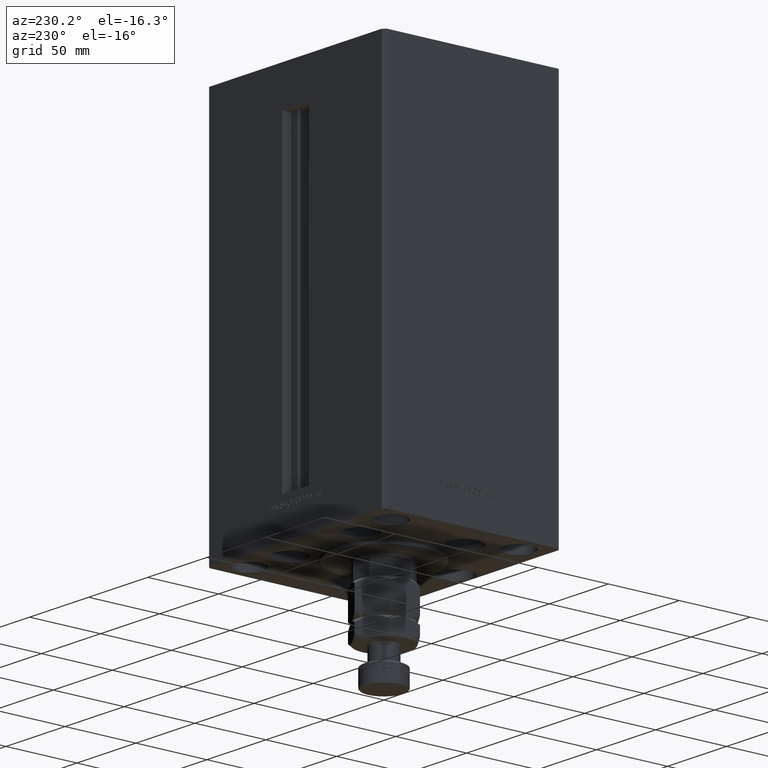
[diagram: clean part render]
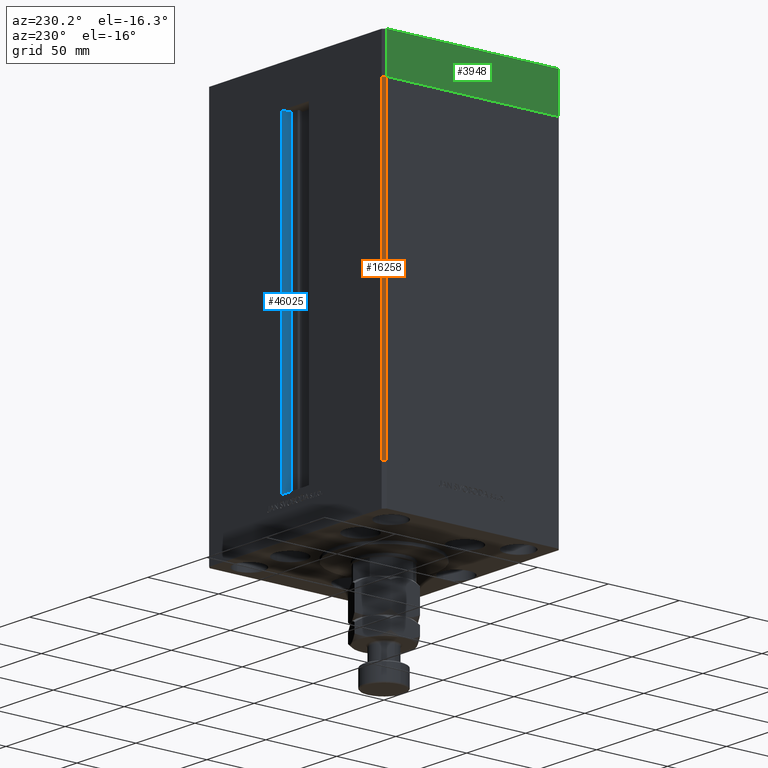
[diagram: same view with three faces highlighted in distinct colors, each labeled with its STEP entity id]
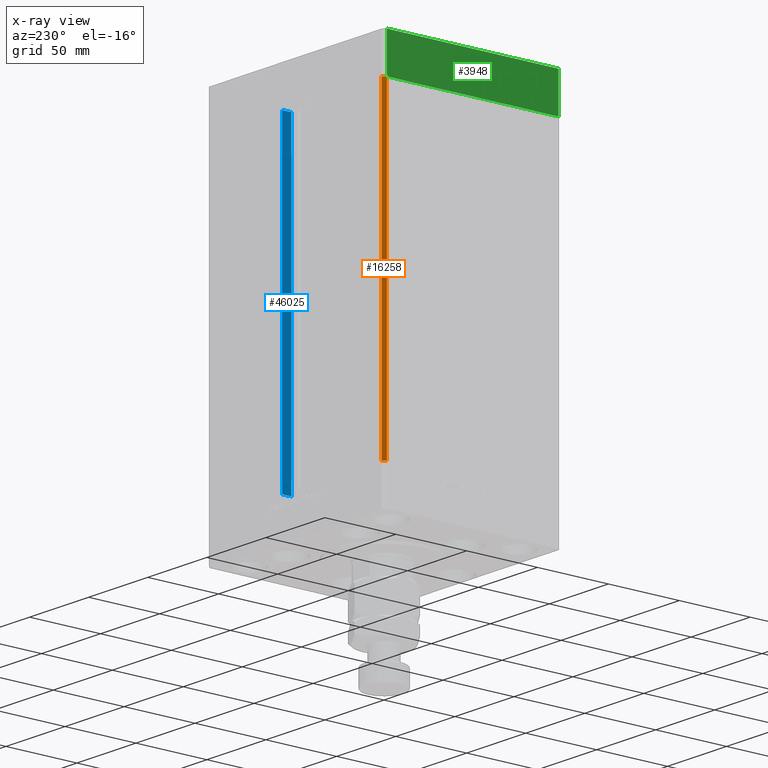
[diagram: x-ray of the same camera — body ghosted, the three highlighted faces saturated]
A machine part, auxiliary view with three faces highlighted in distinct colors.
The next image is the same camera in x-ray (body ghosted, the three faces saturated) — at least one of them is partly hidden behind the body in this view.
Their STEP definitions:

[orange] entity #16258 — the highlighted planar face has unit normal (0.7071, -0.7071, 0).
#1120 = VERTEX_POINT ( 'NONE', #28269 ) ;
#3200 = CARTESIAN_POINT ( 'NONE',  ( -75.00000000000001421, 60.50000000000000000, 217.0000000000000000 ) ) ;
#3449 = DIRECTION ( 'NONE',  ( -0.000000000000000000, -0.000000000000000000, -1.000000000000000000 ) ) ;
#4960 = VECTOR ( 'NONE', #29100, 1000.000000000000114 ) ;
#5808 = CARTESIAN_POINT ( 'NONE',  ( -73.00000000000001421, 62.50000000000000000, 0.000000000000000000 ) ) ;
#6101 = CARTESIAN_POINT ( 'NONE',  ( -75.00000000000001421, 60.50000000000000000, 0.000000000000000000 ) ) ;
#6376 = PLANE ( 'NONE',  #11536 ) ;
#8202 = LINE ( 'NONE', #47142, #38382 ) ;
#8319 = DIRECTION ( 'NONE',  ( -0.000000000000000000, -0.000000000000000000, -1.000000000000000000 ) ) ;
#11536 = AXIS2_PLACEMENT_3D ( 'NONE', #18139, #13279, #29919 ) ;
#13279 = DIRECTION ( 'NONE',  ( 0.7071067811865475727, -0.7071067811865475727, 0.000000000000000000 ) ) ;
#14041 = FACE_OUTER_BOUND ( 'NONE', #22464, .T. ) ;
#14354 = CARTESIAN_POINT ( 'NONE',  ( -73.00000000000001421, 62.50000000000000000, 0.000000000000000000 ) ) ;
#14653 = EDGE_CURVE ( 'NONE', #48615, #43885, #22193, .T. ) ;
#15479 = CARTESIAN_POINT ( 'NONE',  ( -73.00000000000001421, 62.50000000000000000, 217.0000000000000000 ) ) ;
#16258 = ADVANCED_FACE ( 'NONE', ( #14041 ), #6376, .F. ) ;
#17076 = ORIENTED_EDGE ( 'NONE', *, *, #20058, .F. ) ;
#18139 = CARTESIAN_POINT ( 'NONE',  ( -73.00000000000001421, 62.50000000000000000, 217.0000000000000000 ) ) ;
#19090 = LINE ( 'NONE', #15479, #34957 ) ;
#20058 = EDGE_CURVE ( 'NONE', #49691, #43885, #26510, .T. ) ;
#22193 = LINE ( 'NONE', #5808, #4960 ) ;
#22464 = EDGE_LOOP ( 'NONE', ( #38877, #17076, #30444, #22714 ) ) ;
#22714 = ORIENTED_EDGE ( 'NONE', *, *, #38642, .T. ) ;
#23827 = DIRECTION ( 'NONE',  ( -0.7071067811865474617, -0.7071067811865474617, 0.000000000000000000 ) ) ;
#26510 = LINE ( 'NONE', #3200, #27900 ) ;
#27900 = VECTOR ( 'NONE', #3449, 1000.000000000000000 ) ;
#28269 = CARTESIAN_POINT ( 'NONE',  ( -73.00000000000001421, 62.50000000000000000, 217.0000000000000000 ) ) ;
#29100 = DIRECTION ( 'NONE',  ( -0.7071067811865474617, -0.7071067811865474617, 0.000000000000000000 ) ) ;
#29919 = DIRECTION ( 'NONE',  ( 0.7071067811865474617, 0.7071067811865474617, 0.000000000000000000 ) ) ;
#30444 = ORIENTED_EDGE ( 'NONE', *, *, #39973, .F. ) ;
#34957 = VECTOR ( 'NONE', #8319, 1000.000000000000000 ) ;
#38382 = VECTOR ( 'NONE', #23827, 1000.000000000000114 ) ;
#38642 = EDGE_CURVE ( 'NONE', #1120, #48615, #19090, .T. ) ;
#38877 = ORIENTED_EDGE ( 'NONE', *, *, #14653, .T. ) ;
#39973 = EDGE_CURVE ( 'NONE', #1120, #49691, #8202, .T. ) ;
#43885 = VERTEX_POINT ( 'NONE', #6101 ) ;
#45049 = CARTESIAN_POINT ( 'NONE',  ( -75.00000000000001421, 60.50000000000000000, 217.0000000000000000 ) ) ;
#47142 = CARTESIAN_POINT ( 'NONE',  ( -73.00000000000001421, 62.50000000000000000, 217.0000000000000000 ) ) ;
#48615 = VERTEX_POINT ( 'NONE', #14354 ) ;
#49691 = VERTEX_POINT ( 'NONE', #45049 ) ;

[blue] entity #46025 — the highlighted planar face has unit normal (1, 0, 0).
#1840 = LINE ( 'NONE', #24901, #15693 ) ;
#4083 = EDGE_CURVE ( 'NONE', #21561, #10480, #1840, .T. ) ;
#4099 = DIRECTION ( 'NONE',  ( -0.000000000000000000, -1.000000000000000000, 0.000000000000000000 ) ) ;
#4165 = ORIENTED_EDGE ( 'NONE', *, *, #14382, .F. ) ;
#9636 = CARTESIAN_POINT ( 'NONE',  ( 11.25000000000000178, 55.99999999999999289, 0.000000000000000000 ) ) ;
#10480 = VERTEX_POINT ( 'NONE', #36237 ) ;
#13860 = DIRECTION ( 'NONE',  ( -0.000000000000000000, -0.000000000000000000, 1.000000000000000000 ) ) ;
#14106 = CARTESIAN_POINT ( 'NONE',  ( 11.25000000000000178, 55.99999999999999289, 0.000000000000000000 ) ) ;
#14382 = EDGE_CURVE ( 'NONE', #14656, #10480, #50233, .T. ) ;
#14656 = VERTEX_POINT ( 'NONE', #37820 ) ;
#15693 = VECTOR ( 'NONE', #13860, 1000.000000000000000 ) ;
#15797 = PLANE ( 'NONE',  #44339 ) ;
#15977 = ORIENTED_EDGE ( 'NONE', *, *, #27327, .F. ) ;
#16054 = CARTESIAN_POINT ( 'NONE',  ( 11.25000000000000178, 62.49999999999999289, 0.000000000000000000 ) ) ;
#17572 = DIRECTION ( 'NONE',  ( 0.000000000000000000, 1.000000000000000000, 0.000000000000000000 ) ) ;
#19647 = FACE_OUTER_BOUND ( 'NONE', #31301, .T. ) ;
#19837 = DIRECTION ( 'NONE',  ( -0.000000000000000000, -0.000000000000000000, 1.000000000000000000 ) ) ;
#21085 = EDGE_CURVE ( 'NONE', #21794, #14656, #27745, .T. ) ;
#21561 = VERTEX_POINT ( 'NONE', #14106 ) ;
#21794 = VERTEX_POINT ( 'NONE', #16054 ) ;
#24901 = CARTESIAN_POINT ( 'NONE',  ( 11.25000000000000178, 55.99999999999999289, 0.000000000000000000 ) ) ;
#25502 = LINE ( 'NONE', #9636, #33097 ) ;
#26244 = VECTOR ( 'NONE', #4099, 1000.000000000000000 ) ;
#27327 = EDGE_CURVE ( 'NONE', #21561, #21794, #25502, .T. ) ;
#27745 = LINE ( 'NONE', #47755, #30402 ) ;
#27879 = ORIENTED_EDGE ( 'NONE', *, *, #4083, .T. ) ;
#30402 = VECTOR ( 'NONE', #19837, 1000.000000000000000 ) ;
#31301 = EDGE_LOOP ( 'NONE', ( #49793, #15977, #27879, #4165 ) ) ;
#31431 = CARTESIAN_POINT ( 'NONE',  ( 11.25000000000000178, 55.99999999999999289, 0.000000000000000000 ) ) ;
#33097 = VECTOR ( 'NONE', #17572, 1000.000000000000000 ) ;
#36237 = CARTESIAN_POINT ( 'NONE',  ( 11.25000000000000178, 55.99999999999999289, 217.0000000000000000 ) ) ;
#37820 = CARTESIAN_POINT ( 'NONE',  ( 11.24999999999999467, 62.49999999999999289, 217.0000000000000000 ) ) ;
#38683 = CARTESIAN_POINT ( 'NONE',  ( 11.25000000000000178, 0.000000000000000000, 217.0000000000000000 ) ) ;
#44339 = AXIS2_PLACEMENT_3D ( 'NONE', #31431, #47065, #48067 ) ;
#46025 = ADVANCED_FACE ( 'NONE', ( #19647 ), #15797, .F. ) ;
#47065 = DIRECTION ( 'NONE',  ( 1.000000000000000000, -0.000000000000000000, 0.000000000000000000 ) ) ;
#47755 = CARTESIAN_POINT ( 'NONE',  ( 11.25000000000000178, 62.49999999999999289, 0.000000000000000000 ) ) ;
#48067 = DIRECTION ( 'NONE',  ( 0.000000000000000000, 0.000000000000000000, -1.000000000000000000 ) ) ;
#49793 = ORIENTED_EDGE ( 'NONE', *, *, #21085, .F. ) ;
#50233 = LINE ( 'NONE', #38683, #26244 ) ;

[green] entity #3948 — the highlighted planar face has unit normal (-1, 0, 0).
#316 = LINE ( 'NONE', #4428, #1435 ) ;
#1435 = VECTOR ( 'NONE', #31044, 1000.000000000000000 ) ;
#2327 = ORIENTED_EDGE ( 'NONE', *, *, #39640, .F. ) ;
#3948 = ADVANCED_FACE ( 'NONE', ( #32072 ), #46951, .T. ) ;
#4051 = DIRECTION ( 'NONE',  ( 0.000000000000000000, -1.000000000000000000, 0.000000000000000000 ) ) ;
#4428 = CARTESIAN_POINT ( 'NONE',  ( -75.00000000000001421, -60.50000000000001421, -27.00000000000000000 ) ) ;
#4928 = DIRECTION ( 'NONE',  ( -1.000000000000000000, 0.000000000000000000, 0.000000000000000000 ) ) ;
#7142 = VERTEX_POINT ( 'NONE', #24750 ) ;
#7779 = EDGE_CURVE ( 'NONE', #23952, #36763, #42596, .T. ) ;
#9228 = CARTESIAN_POINT ( 'NONE',  ( -75.00000000000001421, 60.49999999999997158, -27.00000000000000000 ) ) ;
#9295 = ORIENTED_EDGE ( 'NONE', *, *, #38942, .T. ) ;
#11600 = CARTESIAN_POINT ( 'NONE',  ( -75.00000000000001421, 60.49999999999997158, -27.00000000000000000 ) ) ;
#11719 = VECTOR ( 'NONE', #49796, 1000.000000000000000 ) ;
#12720 = CARTESIAN_POINT ( 'NONE',  ( -75.00000000000001421, -60.50000000000001421, 0.000000000000000000 ) ) ;
#13885 = VERTEX_POINT ( 'NONE', #12720 ) ;
#17325 = DIRECTION ( 'NONE',  ( 0.000000000000000000, -1.000000000000000000, 0.000000000000000000 ) ) ;
#17346 = AXIS2_PLACEMENT_3D ( 'NONE', #11600, #4928, #19536 ) ;
#19536 = DIRECTION ( 'NONE',  ( 0.000000000000000000, 0.000000000000000000, 1.000000000000000000 ) ) ;
#21731 = ORIENTED_EDGE ( 'NONE', *, *, #24196, .T. ) ;
#23952 = VERTEX_POINT ( 'NONE', #9228 ) ;
#24196 = EDGE_CURVE ( 'NONE', #23952, #7142, #47333, .T. ) ;
#24750 = CARTESIAN_POINT ( 'NONE',  ( -75.00000000000001421, -60.50000000000001421, -27.00000000000000000 ) ) ;
#25514 = LINE ( 'NONE', #41403, #41640 ) ;
#31044 = DIRECTION ( 'NONE',  ( 0.000000000000000000, 0.000000000000000000, 1.000000000000000000 ) ) ;
#31949 = CARTESIAN_POINT ( 'NONE',  ( -75.00000000000001421, 60.49999999999997158, -27.00000000000000000 ) ) ;
#32072 = FACE_OUTER_BOUND ( 'NONE', #43259, .T. ) ;
#32975 = CARTESIAN_POINT ( 'NONE',  ( -75.00000000000001421, 60.49999999999997158, 0.000000000000000000 ) ) ;
#36763 = VERTEX_POINT ( 'NONE', #32975 ) ;
#38270 = CARTESIAN_POINT ( 'NONE',  ( -75.00000000000001421, 60.49999999999997158, -27.00000000000000000 ) ) ;
#38942 = EDGE_CURVE ( 'NONE', #7142, #13885, #316, .T. ) ;
#39640 = EDGE_CURVE ( 'NONE', #36763, #13885, #25514, .T. ) ;
#40338 = VECTOR ( 'NONE', #4051, 1000.000000000000000 ) ;
#41403 = CARTESIAN_POINT ( 'NONE',  ( -75.00000000000001421, 60.49999999999997158, 0.000000000000000000 ) ) ;
#41640 = VECTOR ( 'NONE', #17325, 1000.000000000000000 ) ;
#42596 = LINE ( 'NONE', #38270, #11719 ) ;
#43052 = ORIENTED_EDGE ( 'NONE', *, *, #7779, .F. ) ;
#43259 = EDGE_LOOP ( 'NONE', ( #2327, #43052, #21731, #9295 ) ) ;
#46951 = PLANE ( 'NONE',  #17346 ) ;
#47333 = LINE ( 'NONE', #31949, #40338 ) ;
#49796 = DIRECTION ( 'NONE',  ( 0.000000000000000000, 0.000000000000000000, 1.000000000000000000 ) ) ;